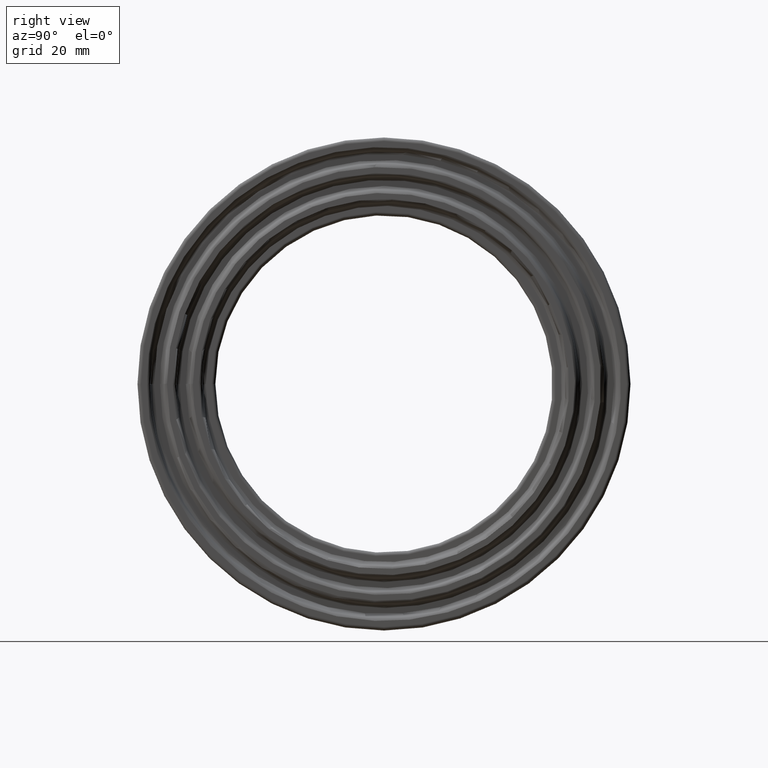
[diagram: clean part render]
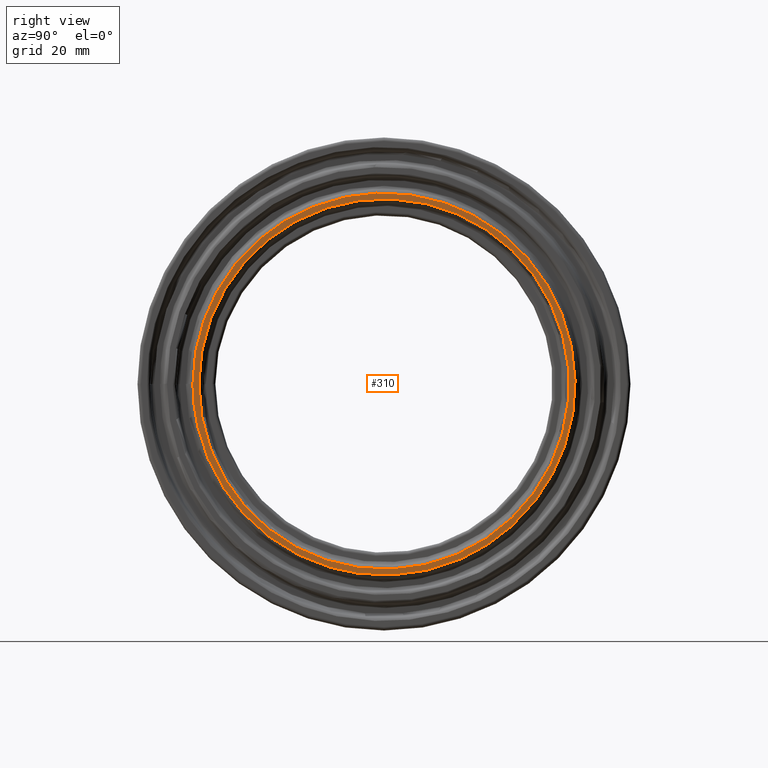
[diagram: same view with one face highlighted and labeled with its STEP entity id]
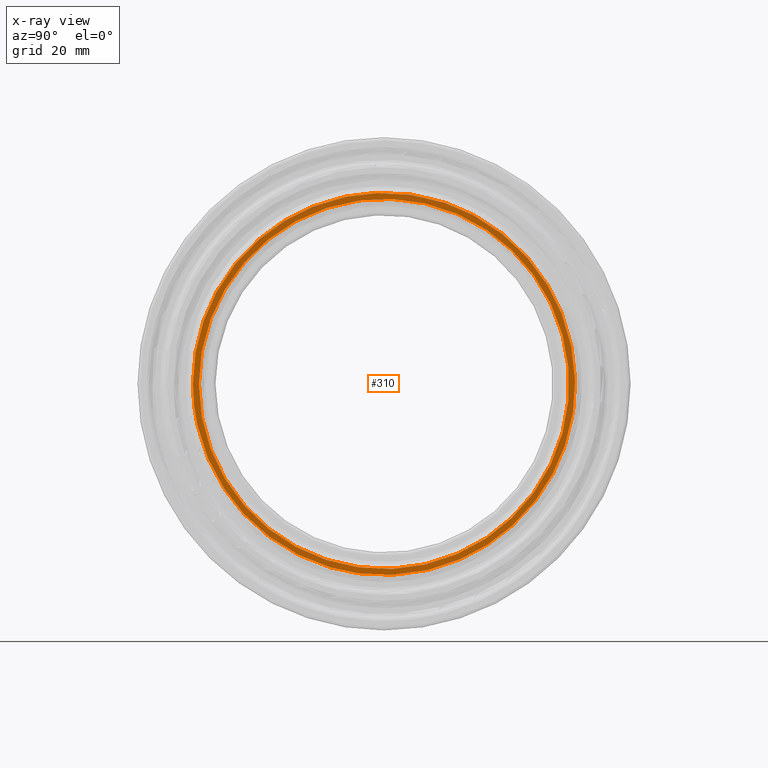
[diagram: x-ray of the same camera — body ghosted, the highlighted face saturated]
A machine part, right view. The second image highlights one B-rep face of the part: STEP entity #310.
The next image is the same camera in x-ray: the body ghosted, the highlighted face saturated — about 0% of this face is hidden behind the body in this view.
In plain terms, the highlighted planar face has unit normal (1, 0, 0).
Its self-contained STEP definition (entity closure, byte-faithful):
#26=B_SPLINE_CURVE_WITH_KNOTS('',3,(#738,#739,#740,#741,#742,#743,#744,
#745,#746,#747,#748,#749,#750,#751,#752,#753,#754,#755,#756,#757,#758,#759,
#760,#761,#762,#763,#764,#765,#766,#767,#768,#769,#770,#771,#772,#773,#774,
#775,#776,#777,#778,#779),.UNSPECIFIED.,.T.,.F.,(4,1,1,1,1,1,1,1,1,1,1,
1,1,1,1,1,1,1,1,1,1,1,1,1,1,1,1,1,1,1,1,1,1,1,1,1,1,1,1,4),(15.1263485247739,
16.2068019908292,17.2872554568845,18.3677089229398,18.9079356559674,19.4481623889951,
20.7987292215642,21.6090693211056,22.1492960541333,22.6895227871609,23.6349195699593,
23.7699762532162,25.2105808746233,25.9308831853268,26.3810721295165,26.6511854960303,
28.0917901174373,28.8120924281409,29.0822057946547,29.5323947388444,30.9729993602514,
31.6933016709549,32.4136039816585,33.4940574477137,33.8992274974845,34.574510913769,
35.6549643798243,36.1951911128519,36.7354178458796,38.8963247779902,39.0989098028755,
39.4365515110178,39.9767782440454,41.0572317101007,41.4624017598715,42.137685176156,
43.2181386422113,43.7583653752389,44.5687054747804,45.3790455743219),
 .UNSPECIFIED.);
#35=PLANE('',#344);
#47=FACE_BOUND('',#104,.T.);
#71=FACE_OUTER_BOUND('',#103,.T.);
#103=EDGE_LOOP('',(#241));
#104=EDGE_LOOP('',(#242));
#149=CIRCLE('',#343,46.9416666666667);
#173=VERTEX_POINT('',#734);
#174=VERTEX_POINT('',#737);
#202=EDGE_CURVE('',#173,#173,#149,.T.);
#203=EDGE_CURVE('',#174,#174,#26,.T.);
#241=ORIENTED_EDGE('',*,*,#203,.F.);
#242=ORIENTED_EDGE('',*,*,#202,.F.);
#310=ADVANCED_FACE('',(#71,#47),#35,.T.);
#343=AXIS2_PLACEMENT_3D('',#735,#399,#400);
#344=AXIS2_PLACEMENT_3D('',#736,#401,#402);
#399=DIRECTION('center_axis',(1.,0.,0.));
#400=DIRECTION('ref_axis',(0.,1.,6.12323399573677E-17));
#401=DIRECTION('center_axis',(1.,0.,0.));
#402=DIRECTION('ref_axis',(0.,0.,-1.));
#734=CARTESIAN_POINT('',(56.,-46.9416666666667,-8.6230442744963E-15));
#735=CARTESIAN_POINT('Origin',(56.,0.,0.));
#736=CARTESIAN_POINT('Origin',(56.,-49.3333333333333,0.));
#737=CARTESIAN_POINT('',(56.,-48.4395782594163,0.039324663008161));
#738=CARTESIAN_POINT('Ctrl Pts',(56.,-48.4402494960209,0.039598761285754));
#739=CARTESIAN_POINT('Ctrl Pts',(56.,-48.4420732030981,3.64359750165903));
#740=CARTESIAN_POINT('Ctrl Pts',(56.,-47.5983929969339,10.9559543790809));
#741=CARTESIAN_POINT('Ctrl Pts',(56.0000000000001,-44.0053554688658,21.2097129388397));
#742=CARTESIAN_POINT('Ctrl Pts',(55.9999999999999,-39.1093979617177,28.9825343241695));
#743=CARTESIAN_POINT('Ctrl Pts',(56.0000000000001,-34.2933793496734,34.3526121570685));
#744=CARTESIAN_POINT('Ctrl Pts',(56.,-28.1853183139599,39.8041451999843));
#745=CARTESIAN_POINT('Ctrl Pts',(56.,-20.2957353747726,44.4409342856506));
#746=CARTESIAN_POINT('Ctrl Pts',(56.,-11.6490308218154,47.1832507534249));
#747=CARTESIAN_POINT('Ctrl Pts',(56.,-5.34049462204616,48.2474373068067));
#748=CARTESIAN_POINT('Ctrl Pts',(56.,1.39802142495415,48.6133686963608));
#749=CARTESIAN_POINT('Ctrl Pts',(56.,6.86732317851665,48.0739460265422));
#750=CARTESIAN_POINT('Ctrl Pts',(56.,15.1466500973173,46.2886783764462));
#751=CARTESIAN_POINT('Ctrl Pts',(56.0000000000001,22.3464688844345,43.4558619934482));
#752=CARTESIAN_POINT('Ctrl Pts',(56.,29.6518445193824,38.4593024391348));
#753=CARTESIAN_POINT('Ctrl Pts',(56.,33.2498084007667,35.2868990149899));
#754=CARTESIAN_POINT('Ctrl Pts',(56.,38.3259656852795,30.1081161558144));
#755=CARTESIAN_POINT('Ctrl Pts',(56.,42.9766361428239,23.2501489043149));
#756=CARTESIAN_POINT('Ctrl Pts',(56.,45.9239087327545,15.6834185410032));
#757=CARTESIAN_POINT('Ctrl Pts',(56.,47.2135184693895,11.0377134490871));
#758=CARTESIAN_POINT('Ctrl Pts',(56.,48.6107296164428,3.95863828541141));
#759=CARTESIAN_POINT('Ctrl Pts',(56.,48.6285109851146,-4.85555131891402));
#760=CARTESIAN_POINT('Ctrl Pts',(56.,46.4484636355928,-14.3629099608739));
#761=CARTESIAN_POINT('Ctrl Pts',(56.,43.3756010525789,-22.1986400226386));
#762=CARTESIAN_POINT('Ctrl Pts',(56.0000000000001,39.3887895962312,-28.5518695075585));
#763=CARTESIAN_POINT('Ctrl Pts',(56.,34.6338212128874,-34.0103046882918));
#764=CARTESIAN_POINT('Ctrl Pts',(56.,29.3119574547727,-38.9117658254174));
#765=CARTESIAN_POINT('Ctrl Pts',(56.,22.6914321368658,-43.0651714815521));
#766=CARTESIAN_POINT('Ctrl Pts',(56.0000000000001,16.0392032134478,-45.812907359627));
#767=CARTESIAN_POINT('Ctrl Pts',(56.,5.5150258576807,-48.849290928676));
#768=CARTESIAN_POINT('Ctrl Pts',(56.,-4.40544585334231,-48.8409188662039));
#769=CARTESIAN_POINT('Ctrl Pts',(56.,-13.2398457565312,-46.6226156245117));
#770=CARTESIAN_POINT('Ctrl Pts',(56.,-16.6947413683537,-45.5423926354196));
#771=CARTESIAN_POINT('Ctrl Pts',(56.,-22.7352517101756,-43.0429540012187));
#772=CARTESIAN_POINT('Ctrl Pts',(56.0000000000001,-28.5762596240927,-39.369519328742));
#773=CARTESIAN_POINT('Ctrl Pts',(56.,-34.0204129276743,-34.6241316643952));
#774=CARTESIAN_POINT('Ctrl Pts',(56.,-38.9323993426318,-29.2850246917435));
#775=CARTESIAN_POINT('Ctrl Pts',(56.,-43.0721361294945,-22.6766643884324));
#776=CARTESIAN_POINT('Ctrl Pts',(56.,-46.1662082965695,-15.1820003543849));
#777=CARTESIAN_POINT('Ctrl Pts',(56.,-47.9979050683382,-8.08876856086143));
#778=CARTESIAN_POINT('Ctrl Pts',(56.,-48.4388817157131,-2.6634002939942));
#779=CARTESIAN_POINT('Ctrl Pts',(56.,-48.4402494960209,0.039598761285754));